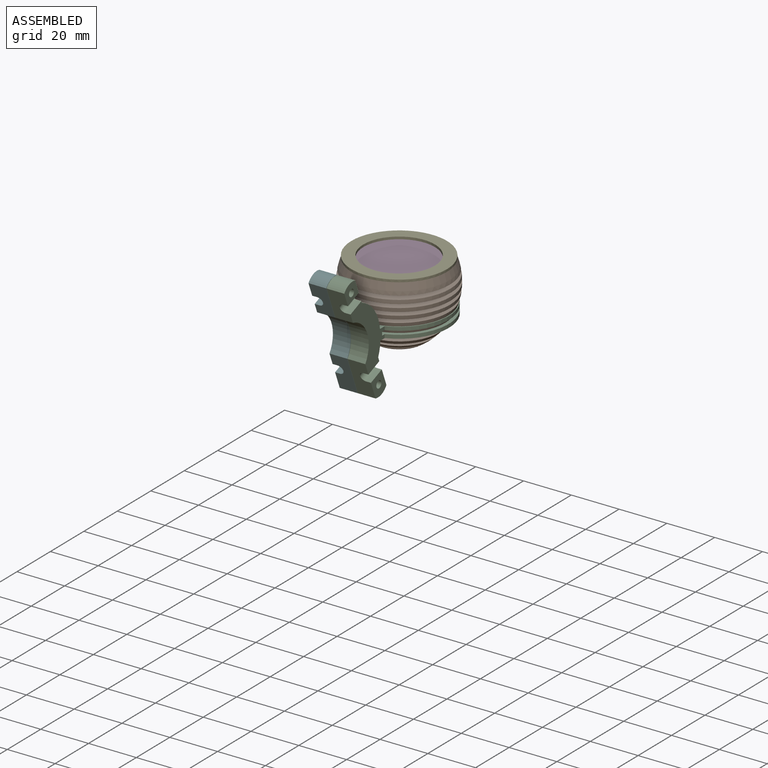
[diagram: assembled view]
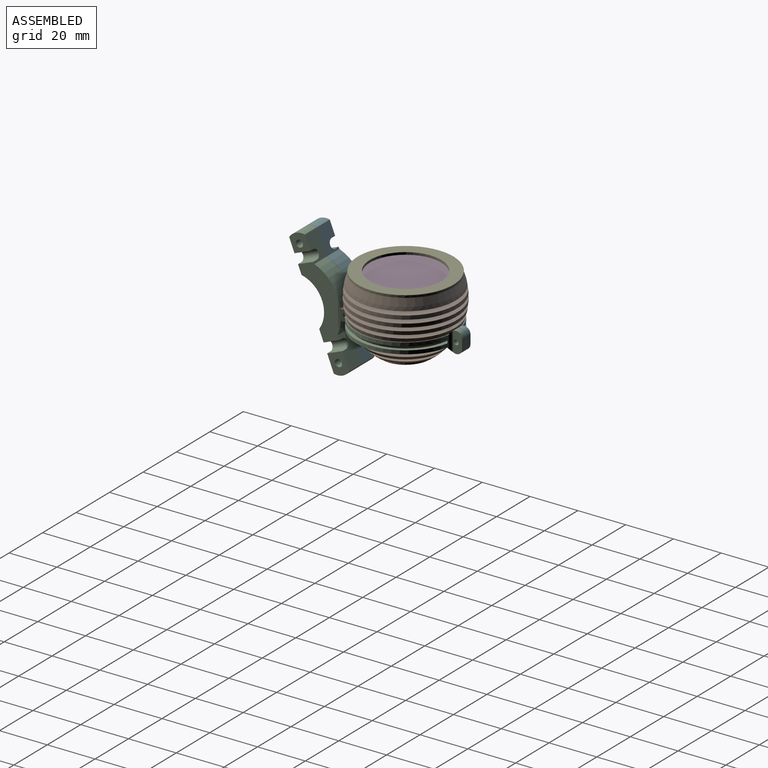
[diagram: assembled view, second angle]
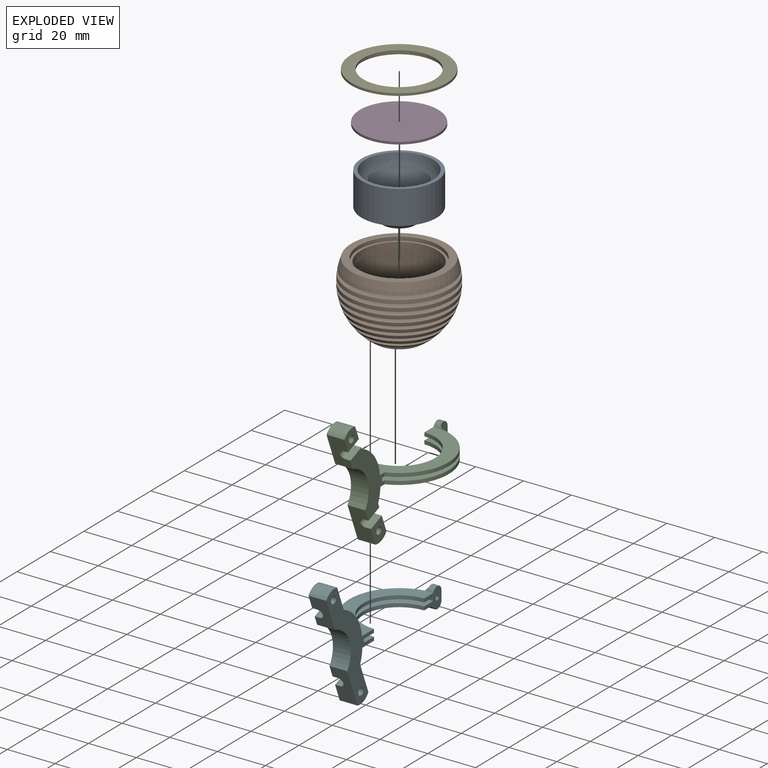
[diagram: exploded view]
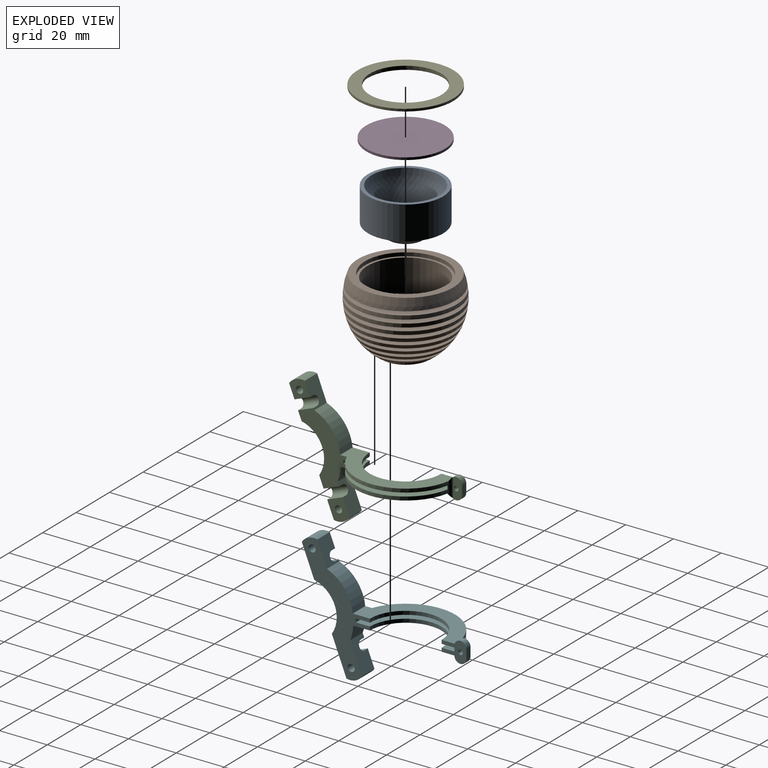
[diagram: exploded view, second angle]
ASSEMBLY  parts=6 mates=5
PART A: 8 faces, bbox 31.5x31.5x19 mm
  f0: revolved ~28.5x28.5mm, area 1442.8mm2, adj f1,f7
  f1: plane 14x14mm, normal (0,0,1), area 115.5mm2, adj f0,f2
  f2: cylinder r=3.5mm len=7mm, axis (0,0,-1), area 22mm2, adj f1,f3
  f3: plane 14x14mm, normal (0,0,-1), area 115.5mm2, adj f2,f4
  f4: revolved ~21.5x21.5mm, area 355.1mm2, adj f3,f5
  f5: plane 31.5x31.5mm, normal (0,0,-1), area 416.3mm2, adj f4,f6
  f6: cylinder r=15.75mm len=31.5mm, axis (0,0,-1), area 1385.4mm2, adj f5,f7
  f7: plane 31.5x31.5mm, normal (0,0,1), area 141.4mm2, adj f0,f6
PART B: 47 faces, bbox 43.3x43.3x30 mm
  f0: plane 40x40mm, normal (0,0,1), area 348.7mm2, adj f1,f42
  f1: revolved ~42.49x42.49mm, area 607.8mm2, adj f0,f2
  f2: plane 42.49x42.49mm, normal (0,0,-1), area 509.7mm2, adj f1,f3
  f3: cylinder r=17mm len=34mm, axis (0,0,-1), area 160.2mm2, adj f2,f4
  f4: plane 42.93x42.93mm, normal (0,0,1), area 539.3mm2, adj f3,f5
  f5: revolved ~43.18x43.18mm, area 203.7mm2, adj f4,f6
  f6: plane 43.18x43.18mm, normal (0,0,-1), area 556.6mm2, adj f5,f7
  f7: cylinder r=17mm len=34mm, axis (0,0,-1), area 160.2mm2, adj f6,f8
  f8: plane 43.26x43.26mm, normal (0,0,1), area 561.7mm2, adj f7,f9
  f9: revolved ~43.26x43.26mm, area 203.8mm2, adj f8,f10
  f10: plane 43.15x43.15mm, normal (0,0,-1), area 554.6mm2, adj f9,f11
  f11: cylinder r=17mm len=34mm, axis (0,0,-1), area 160.2mm2, adj f10,f12
  f12: plane 42.87x42.87mm, normal (0,0,1), area 535.2mm2, adj f11,f13
  f13: revolved ~42.87x42.87mm, area 203.5mm2, adj f12,f14
  f14: plane 42.4x42.4mm, normal (0,0,-1), area 503.7mm2, adj f13,f15
  f15: cylinder r=17mm len=34mm, axis (0,0,-1), area 160.2mm2, adj f14,f16
  f16: plane 41.73x41.73mm, normal (0,0,1), area 460.1mm2, adj f15,f17
  f17: revolved ~41.73x41.73mm, area 202.6mm2, adj f16,f18
  f18: plane 40.88x40.88mm, normal (0,0,-1), area 605.4mm2, adj f17,f19
  f19: cylinder r=15mm len=30mm, axis (0,0,-1), area 141.4mm2, adj f18,f20
  f20: plane 39.81x39.81mm, normal (0,0,1), area 537.8mm2, adj f19,f21
  f21: revolved ~39.81x39.81mm, area 201mm2, adj f20,f22
  f22: plane 38.52x38.52mm, normal (0,0,-1), area 458.4mm2, adj f21,f23
  f23: cylinder r=15mm len=30mm, axis (0,0,-1), area 141.4mm2, adj f22,f24
  f24: plane 36.98x36.98mm, normal (0,0,1), area 367.5mm2, adj f23,f25
  f25: revolved ~36.98x36.98mm, area 198.5mm2, adj f24,f26
  f26: plane 35.18x35.18mm, normal (0,0,-1), area 592mm2, adj f25,f27
  f27: cylinder r=11mm len=22mm, axis (0,0,-1), area 103.7mm2, adj f26,f28
  f28: plane 33.07x33.07mm, normal (0,0,1), area 478.8mm2, adj f27,f29
  f29: revolved ~33.07x33.07mm, area 194.5mm2, adj f28,f30
  f30: plane 30.6x30.6mm, normal (0,0,-1), area 421.4mm2, adj f29,f31
  f31: cylinder r=10mm len=20mm, axis (0,0,-1), area 94.2mm2, adj f30,f32
  f32: plane 27.7x27.7mm, normal (0,0,1), area 288.4mm2, adj f31,f33
  f33: revolved ~27.7x27.7mm, area 149.1mm2, adj f32,f35
  f34: cylinder r=11mm len=22mm, axis (0,0,-1), area 92.1mm2, adj f36,f40
  f35: cylinder r=12.5mm len=25mm, axis (0,0,-1), area 15.1mm2, adj f33,f36
  f36: plane 25x25mm, normal (0,0,-1), area 110.7mm2, adj f34,f35
  f37: plane 18x18mm, normal (0,0,-1), area 254.5mm2, adj f38
  f38: cylinder r=9mm len=18mm, axis (0,0,-1), area 395.8mm2, adj f37,f39
  f39: plane 20x20mm, normal (0,0,-1), area 59.7mm2, adj f38,f40
  f40: revolved ~22x22mm, area 79.3mm2, adj f34,f39
  f41: plane 34x34mm, normal (0,0,1), area 103.7mm2, adj f42,f46
  f42: cylinder r=17mm len=34mm, axis (0,0,1), area 160.2mm2, adj f0,f41
  f43: plane 28x28mm, normal (0,0,1), area 615.8mm2, adj f44
  f44: cylinder r=14mm len=28mm, axis (0,0,1), area 615.8mm2, adj f43,f45
  f45: plane 32x32mm, normal (0,0,1), area 188.5mm2, adj f44,f46
  f46: cylinder r=16mm len=32mm, axis (0,0,1), area 1357.2mm2, adj f41,f45
PART C: 37 faces, bbox 20.7x68.9x49.7 mm
  f0: plane 15.32x7.45mm, normal (0,-0.93,-0.37), area 108.6mm2, adj f1,f4,f8,f24,f25,f26,f32,f36
  f1: plane 9.74x9.28mm, normal (1,0,0), area 50.8mm2, adj f0,f5,f24,f32,f33
  f2: plane 13x7.45mm, normal (0,-0.93,-0.37), area 90mm2, adj f3,f4,f8,f27,f28,f29,f30,f36
  f3: plane 8.73x8.35mm, normal (1,0,0), area 40.3mm2, adj f2,f9,f27,f30,f31
  f4: plane 29.39x20.39mm, normal (1,0,0), area 236.5mm2, adj f0,f2,f5,f6,f7,f8,f9,f10
  f5: plane 12.36x7.45mm, normal (0,0.93,0.37), area 84.9mm2, adj f1,f4,f11,f24,f25,f26,f32,f36
  f6: plane 42.66x20.75mm, normal (0,0,1), area 338.3mm2, adj f4,f10,f13,f16,f21,f35,f36
  f7: plane 42.3x20.75mm, normal (0,0,-1), area 336.1mm2, adj f4,f11,f14,f15,f16,f35,f36
  f8: cylinder r=12mm len=18.43mm, axis (-1,0,0), area 174.2mm2, adj f0,f2,f4,f36
  f9: plane 10.03x7.45mm, normal (0,0.93,0.37), area 66.2mm2, adj f3,f4,f10,f27,f28,f29,f30,f36
  f10: cylinder r=17mm len=14.03mm, axis (-1,0,0), area 138.9mm2, adj f4,f6,f9,f36
  f11: cylinder r=17mm len=7.45mm, axis (-1,0,0), area 44.8mm2, adj f4,f5,f7,f36
  f12: plane 3.75x2.45mm, normal (0,1,0), area 9.2mm2, adj f13,f14,f22,f35
  f13: cylinder r=2.5mm len=4.89mm, axis (-1,0,0), area 18.3mm2, adj f6,f12,f22,f23,f35
  f14: cylinder r=2.5mm len=5mm, axis (-1,0,0), area 21.1mm2, adj f7,f12,f16,f22,f23,f35
  f15: cylinder r=15mm len=30mm, axis (0,0,1), area 70.5mm2, adj f7,f19,f35,f36
  f16: cylinder r=20.8mm len=39.9mm, axis (0,0,1), area 163.6mm2, adj f4,f6,f7,f14,f17,f19,f20,f23
  f17: plane 41.34x20.75mm, normal (0,0,-1), area 328.9mm2, adj f4,f16,f18,f20,f21,f35,f36
  f18: plane 7.45x1.5mm, normal (0,1,0.05), area 11.2mm2, adj f4,f17,f19,f36
  f19: plane 41.26x20.75mm, normal (0,0,1), area 328.3mm2, adj f4,f15,f16,f18,f20,f35,f36
  f20: plane 4.07x1.5mm, normal (0,-1,0), area 6.1mm2, adj f16,f17,f19,f35
  f21: cylinder r=15mm len=30mm, axis (0,0,1), area 70.5mm2, adj f6,f17,f35,f36
  f22: plane 8.75x3.89mm, normal (1,0,0), area 27.8mm2, adj f12,f13,f14,f23,f34
  f23: cylinder r=2mm len=7.91mm, axis (0,0,1), area 9.5mm2, adj f13,f14,f16,f22
  f24: plane 6.5x2.6mm, normal (0,-0.37,0.93), area 14mm2, adj f0,f1,f5,f26
  f25: plane 6.5x2.6mm, normal (0,0.37,-0.93), area 14mm2, adj f0,f4,f5,f26
  f26: cylinder r=2mm len=7.99mm, axis (0,-0.93,-0.37), area 44mm2, adj f0,f5,f24,f25
  f27: plane 6.5x2.6mm, normal (0,0.37,-0.93), area 14mm2, adj f2,f3,f9,f28
  f28: cylinder r=2mm len=7.99mm, axis (0,-0.93,-0.37), area 44mm2, adj f2,f9,f27,f29
  f29: plane 6.5x2.6mm, normal (0,-0.37,0.93), area 14mm2, adj f2,f4,f9,f28
  f30: cylinder r=6mm len=7.45mm, axis (-1,0,0), area 55.7mm2, adj f2,f3,f9,f36
  f31: cylinder r=1.5mm len=7.45mm, axis (-1,0,0), area 70.2mm2, adj f3,f36
  f32: cylinder r=6mm len=7.45mm, axis (-1,0,0), area 55.7mm2, adj f0,f1,f5,f36
  f33: cylinder r=1.5mm len=7.45mm, axis (-1,0,0), area 70.2mm2, adj f1,f36
  f34: cylinder r=1mm len=2.45mm, axis (-1,0,0), area 15.4mm2, adj f22,f35
  f35: plane 10.39x8.75mm, normal (-1,0,0), area 51.4mm2, adj f6,f7,f12,f13,f14,f15,f17,f19
  f36: plane 49.7x28.5mm, normal (-1,0,0), area 396.8mm2, adj f0,f2,f5,f6,f7,f8,f9,f10
PART D: 3 faces, bbox 33x33x1 mm
  f0: cylinder r=16.5mm len=33mm, axis (0,0,-1), area 103.7mm2, adj f1,f2
  f1: plane 33x33mm, normal (0,0,1), area 855.3mm2, adj f0
  f2: plane 33x33mm, normal (0,0,-1), area 855.3mm2, adj f0
PART E: 8 faces, bbox 40x40x2 mm
  f0: plane 34x34mm, normal (0,0,-1), area 103.7mm2, adj f1,f4
  f1: cylinder r=16mm len=32mm, axis (0,0,-1), area 100.5mm2, adj f0,f2
  f2: plane 32x32mm, normal (0,0,-1), area 97.4mm2, adj f1,f7
  f3: plane 40x40mm, normal (0,0,-1), area 348.7mm2, adj f4,f6
  f4: cylinder r=17mm len=34mm, axis (0,0,-1), area 106.8mm2, adj f0,f3
  f5: plane 40x40mm, normal (0,0,1), area 549.8mm2, adj f6,f7
  f6: cylinder r=20mm len=40mm, axis (0,0,-1), area 125.7mm2, adj f3,f5
  f7: cylinder r=15mm len=30mm, axis (0,0,-1), area 94.2mm2, adj f2,f5
PART F: 37 faces, bbox 20.7x68.9x49.7 mm
  f0: plane 6.5x2.6mm, normal (0,0.37,-0.93), area 14mm2, adj f1,f7,f25,f28
  f1: cylinder r=2mm len=7.99mm, axis (0,-0.93,-0.37), area 44mm2, adj f0,f2,f25,f28
  f2: plane 6.5x2.6mm, normal (0,-0.37,0.93), area 14mm2, adj f1,f25,f28,f31
  f3: plane 6.5x2.6mm, normal (0,0.37,-0.93), area 14mm2, adj f4,f11,f27,f33
  f4: cylinder r=2mm len=7.99mm, axis (0,-0.93,-0.37), area 44mm2, adj f3,f5,f11,f27
  f5: plane 6.5x2.6mm, normal (0,-0.37,0.93), area 14mm2, adj f4,f7,f11,f27
  f6: cylinder r=2mm len=7.91mm, axis (0,0,1), area 9.7mm2, adj f8,f19,f20,f29
  f7: plane 29.39x20.39mm, normal (-1,0,0), area 236.5mm2, adj f0,f5,f8,f9,f11,f12,f15,f16
  f8: cylinder r=20.8mm len=39.9mm, axis (0,0,1), area 163.7mm2, adj f6,f7,f14,f15,f17,f19,f22,f23
  f9: cylinder r=17mm len=14.03mm, axis (-1,0,0), area 138.9mm2, adj f7,f11,f23,f36
  f10: cylinder r=6mm len=7.45mm, axis (-1,0,0), area 55.7mm2, adj f11,f27,f33,f36
  f11: plane 10.03x7.45mm, normal (0,0.93,0.37), area 66.2mm2, adj f3,f4,f5,f7,f9,f10,f33,f36
  f12: cylinder r=17mm len=7.45mm, axis (-1,0,0), area 44.8mm2, adj f7,f22,f25,f36
  f13: cylinder r=15mm len=30mm, axis (0,0,1), area 70.5mm2, adj f17,f23,f35,f36
  f14: plane 4.07x1.5mm, normal (0,-1,0), area 6.1mm2, adj f8,f15,f17,f35
  f15: plane 41.26x20.75mm, normal (0,0,1), area 328.3mm2, adj f7,f8,f14,f16,f18,f35,f36
  f16: plane 7.45x1.5mm, normal (0,1,0.05), area 11.2mm2, adj f7,f15,f17,f36
  f17: plane 41.34x20.75mm, normal (0,0,-1), area 328.9mm2, adj f7,f8,f13,f14,f16,f35,f36
  f18: cylinder r=15mm len=30mm, axis (0,0,1), area 70.5mm2, adj f15,f22,f35,f36
  f19: cylinder r=2.5mm len=5mm, axis (-1,0,0), area 21.2mm2, adj f6,f8,f21,f22,f29,f35
  f20: cylinder r=2.5mm len=4.89mm, axis (-1,0,0), area 18.3mm2, adj f6,f21,f23,f29,f35
  f21: plane 3.75x2.45mm, normal (0,1,0), area 9.2mm2, adj f19,f20,f29,f35
  f22: plane 42.3x20.75mm, normal (0,0,-1), area 336.1mm2, adj f7,f8,f12,f18,f19,f35,f36
  f23: plane 42.66x20.75mm, normal (0,0,1), area 338.3mm2, adj f7,f8,f9,f13,f20,f35,f36
  f24: cylinder r=6mm len=7.45mm, axis (-1,0,0), area 55.7mm2, adj f25,f28,f31,f36
  f25: plane 12.36x7.45mm, normal (0,0.93,0.37), area 84.9mm2, adj f0,f1,f2,f7,f12,f24,f31,f36
  f26: cylinder r=12mm len=18.43mm, axis (-1,0,0), area 174.2mm2, adj f7,f27,f28,f36
  f27: plane 13x7.45mm, normal (0,-0.93,-0.37), area 90mm2, adj f3,f4,f5,f7,f10,f26,f33,f36
  f28: plane 15.32x7.45mm, normal (0,-0.93,-0.37), area 108.6mm2, adj f0,f1,f2,f7,f24,f26,f31,f36
  f29: plane 8.75x3.89mm, normal (-1,0,0), area 27.8mm2, adj f6,f19,f20,f21,f30
  f30: cylinder r=1mm len=2.45mm, axis (-1,0,0), area 15.4mm2, adj f29,f35
  f31: plane 9.74x9.28mm, normal (-1,0,0), area 50.8mm2, adj f2,f24,f25,f28,f32
  f32: cylinder r=1.5mm len=7.45mm, axis (-1,0,0), area 70.2mm2, adj f31,f36
  f33: plane 8.73x8.35mm, normal (-1,0,0), area 40.3mm2, adj f3,f10,f11,f27,f34
  f34: cylinder r=1.5mm len=7.45mm, axis (-1,0,0), area 70.2mm2, adj f33,f36
  f35: plane 10.39x8.75mm, normal (1,0,0), area 51.4mm2, adj f13,f14,f15,f17,f18,f19,f20,f21
  f36: plane 49.7x28.5mm, normal (1,0,0), area 396.8mm2, adj f9,f10,f11,f12,f13,f15,f16,f17
PLACE A t=(-262.79,0,10)mm
PLACE B rot(axis=(0,0,1),0deg) t=(250,0,0)mm
PLACE C rot(axis=(0,0,1),0deg) t=(522.5,2.88,-12.25)mm
PLACE D t=(352.88,0,29)mm
PLACE E rot(axis=(-1,0,0),0deg) t=(425.93,0,29)mm
PLACE F rot(axis=(0,0,1),0deg) t=(522.5,2.88,-12.25)mm
MATE fastened A.f2 <-> B.f3  axis (0,0,-1) through (0,0,15)mm
MATE slider C.f15 <-> B.f3  axis (0,0,1) through (0,0,13.5)mm
MATE fastened D.f0 <-> E.f1  axis (0,0,1) through (0,0,30)mm
MATE slider F.f8 <-> B.f3  axis (0,0,1) through (0,0,13.5)mm
MATE slider E.f1 <-> B.f3  axis (0,0,-1) through (0,0,30)mm
